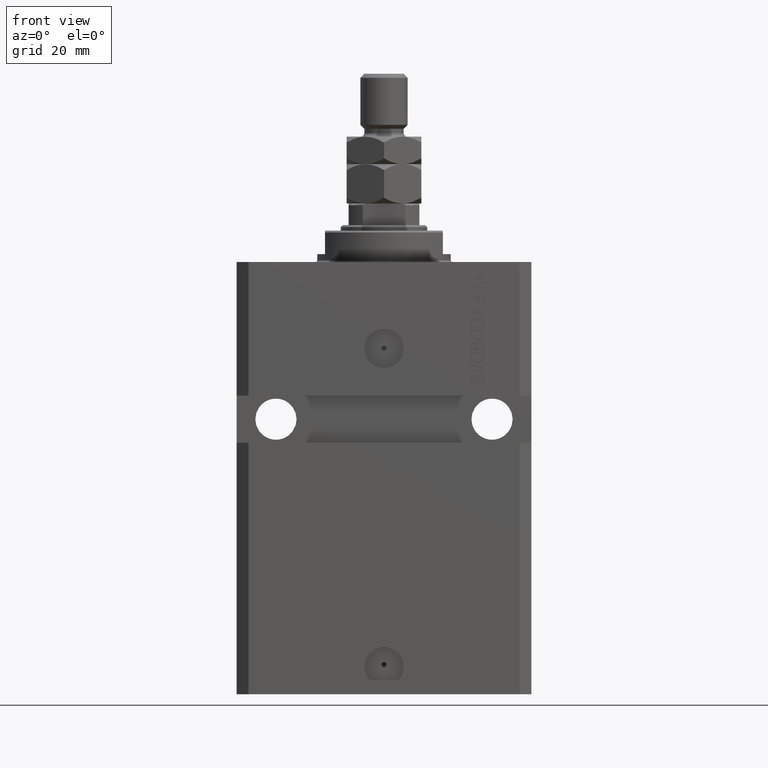
[diagram: clean part render]
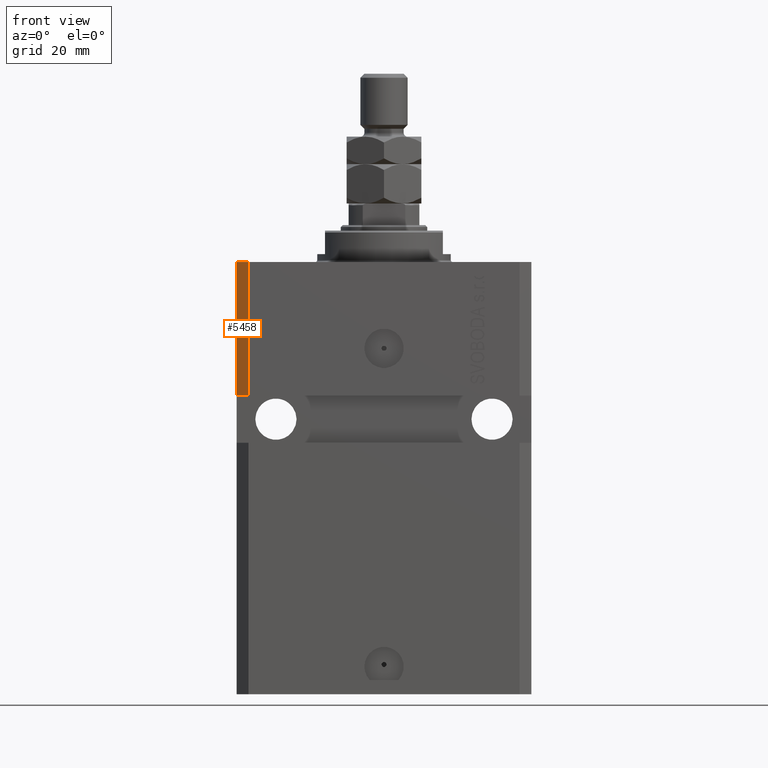
[diagram: same view with one face highlighted and labeled with its STEP entity id]
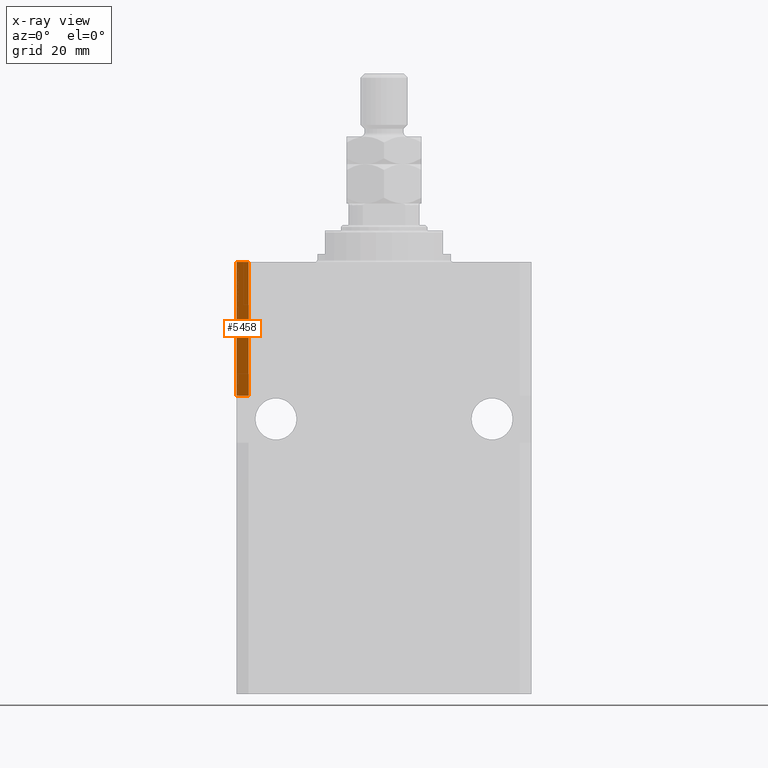
[diagram: x-ray of the same camera — body ghosted, the highlighted face saturated]
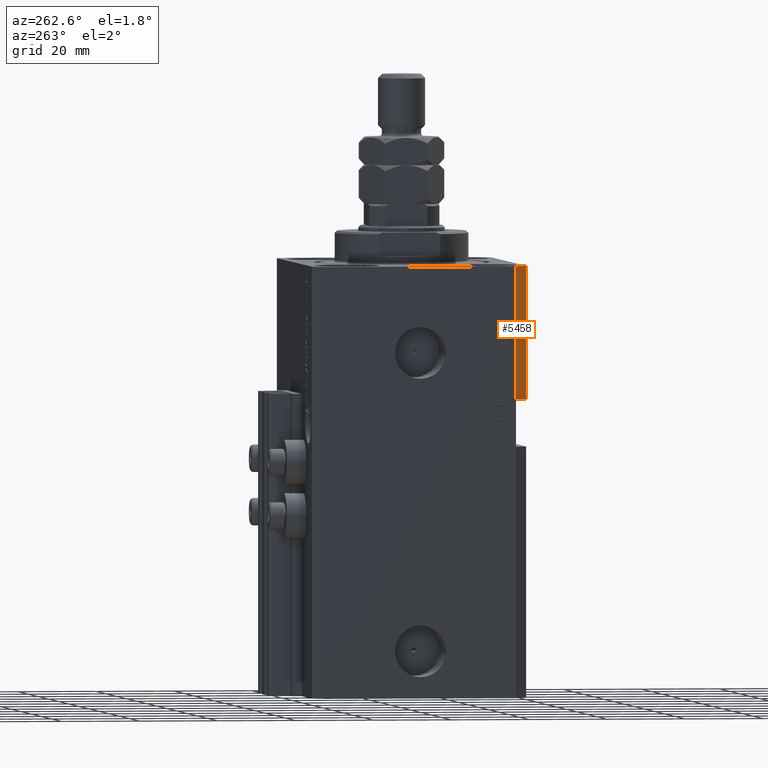
[diagram: same view with one face highlighted and labeled with its STEP entity id]
A machine part, front view. The second image highlights one B-rep face of the part: STEP entity #5458.
The next image is the same camera in x-ray: the body ghosted, the highlighted face saturated — about 0% of this face is hidden behind the body in this view.
A second angle (auxiliary view) of the same face is appended — the face is thin or edge-on in the first view.
In plain terms, the highlighted planar face has unit normal (-0.7071, -0.7071, 0).
Its self-contained STEP definition (entity closure, byte-faithful):
#217 = VECTOR ( 'NONE', #4861, 1000.000000000000000 ) ;
#1764 = AXIS2_PLACEMENT_3D ( 'NONE', #4712, #4949, #37905 ) ;
#4712 = CARTESIAN_POINT ( 'NONE',  ( -37.49999999999999289, -24.50000000000000000, -110.0000000000000000 ) ) ;
#4861 = DIRECTION ( 'NONE',  ( -0.7071067811865483499, 0.7071067811865466846, -1.962615573354721115E-16 ) ) ;
#4949 = DIRECTION ( 'NONE',  ( -0.7071067811865466846, -0.7071067811865483499, 0.000000000000000000 ) ) ;
#5040 = CARTESIAN_POINT ( 'NONE',  ( -34.49999999999998579, -27.50000000000000000, -34.00000000000000000 ) ) ;
#5120 = LINE ( 'NONE', #24179, #7603 ) ;
#5458 = ADVANCED_FACE ( 'NONE', ( #25778 ), #18111, .T. ) ;
#7054 = VECTOR ( 'NONE', #29528, 1000.000000000000000 ) ;
#7267 = DIRECTION ( 'NONE',  ( 0.000000000000000000, 0.000000000000000000, 1.000000000000000000 ) ) ;
#7603 = VECTOR ( 'NONE', #32105, 1000.000000000000000 ) ;
#7821 = VERTEX_POINT ( 'NONE', #9245 ) ;
#8410 = EDGE_CURVE ( 'NONE', #42178, #11011, #30862, .T. ) ;
#9245 = CARTESIAN_POINT ( 'NONE',  ( -34.49999999999998579, -27.49999999999999645, 0.000000000000000000 ) ) ;
#9881 = ORIENTED_EDGE ( 'NONE', *, *, #31393, .F. ) ;
#11011 = VERTEX_POINT ( 'NONE', #41864 ) ;
#11238 = LINE ( 'NONE', #40432, #11530 ) ;
#11530 = VECTOR ( 'NONE', #7267, 1000.000000000000000 ) ;
#17982 = ORIENTED_EDGE ( 'NONE', *, *, #8410, .F. ) ;
#18111 = PLANE ( 'NONE',  #1764 ) ;
#20653 = ORIENTED_EDGE ( 'NONE', *, *, #30504, .F. ) ;
#24179 = CARTESIAN_POINT ( 'NONE',  ( -37.49999999999999289, -24.50000000000000000, 0.000000000000000000 ) ) ;
#24224 = EDGE_LOOP ( 'NONE', ( #17982, #45887, #9881, #20653 ) ) ;
#25778 = FACE_OUTER_BOUND ( 'NONE', #24224, .T. ) ;
#26831 = VERTEX_POINT ( 'NONE', #45049 ) ;
#29528 = DIRECTION ( 'NONE',  ( 0.000000000000000000, 0.000000000000000000, 1.000000000000000000 ) ) ;
#30504 = EDGE_CURVE ( 'NONE', #11011, #26831, #11238, .T. ) ;
#30862 = LINE ( 'NONE', #38770, #217 ) ;
#31393 = EDGE_CURVE ( 'NONE', #26831, #7821, #5120, .T. ) ;
#32105 = DIRECTION ( 'NONE',  ( 0.7071067811865483499, -0.7071067811865466846, 0.000000000000000000 ) ) ;
#33009 = CARTESIAN_POINT ( 'NONE',  ( -34.49999999999998579, -27.49999999999999645, -110.0000000000000000 ) ) ;
#37905 = DIRECTION ( 'NONE',  ( 0.7071067811865483499, -0.7071067811865466846, 0.000000000000000000 ) ) ;
#38770 = CARTESIAN_POINT ( 'NONE',  ( -37.50000000000000711, -24.49999999999998934, -34.00000000000001421 ) ) ;
#40432 = CARTESIAN_POINT ( 'NONE',  ( -37.49999999999999289, -24.50000000000000000, -110.0000000000000000 ) ) ;
#41864 = CARTESIAN_POINT ( 'NONE',  ( -37.50000000000000000, -24.50000000000000000, -34.00000000000000000 ) ) ;
#42178 = VERTEX_POINT ( 'NONE', #5040 ) ;
#42239 = EDGE_CURVE ( 'NONE', #42178, #7821, #44384, .T. ) ;
#44384 = LINE ( 'NONE', #33009, #7054 ) ;
#45049 = CARTESIAN_POINT ( 'NONE',  ( -37.49999999999999289, -24.50000000000000000, 0.000000000000000000 ) ) ;
#45887 = ORIENTED_EDGE ( 'NONE', *, *, #42239, .T. ) ;